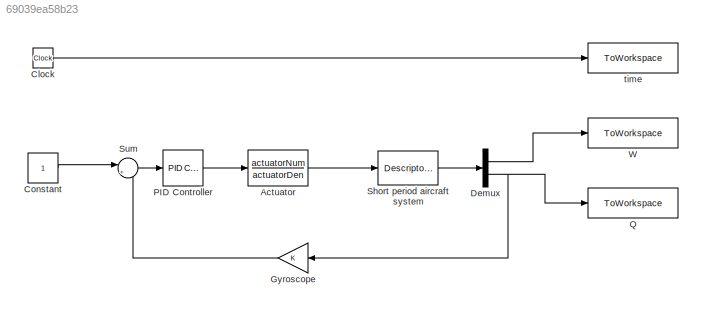
MODEL slx_69039ea58b23
KIND model
CONFIG AbsTol = auto
CONFIG EnableMultiTasking = off
CONFIG FixedStep = auto
CONFIG MaxStep = auto
CONFIG MinStep = auto
CONFIG RelTol = 1e-3
CONFIG SampleTimeConstraint = Unconstrained
CONFIG SolverName = VariableStepAuto
CONFIG StartTime = 0.0
CONFIG StopTime = 10.0
BLOCK [TransferFcn] Actuator
  Denominator = actuatorDen
  Numerator = actuatorNum
BLOCK [Clock] Clock
BLOCK [Constant] Constant
BLOCK [Demux] Demux
  Outputs = 2
  Ports = [1, 2]
BLOCK [Gain] Gyroscope
BLOCK [Reference] PID Controller  REF=slpidlib/PID Controller
  Ports = [1, 1]
  SourceBlock = slpidlib/PID Controller
  SourceProductBaseCode = SL
  SourceType = PID 1dof
BLOCK [ToWorkspace] Q
  FixptAsFi = on
  MaxDataPoints = inf
  Ports = [1]
  SampleTime = -1
  SaveFormat = Timeseries
  VariableName = Q
BLOCK [DescriptorStateSpace] Short period aircraft system
  A = AShortPeriod
  B = BShortPeriod
  C = CShortPeriod
  D = DShortPeriod
  E = EShordPeriod
  InitialCondition = [0,0]
  Ports = [1, 1]
BLOCK [Sum] Sum
  Inputs = |+-
  Ports = [2, 1]
BLOCK [ToWorkspace] W
  FixptAsFi = on
  MaxDataPoints = inf
  Ports = [1]
  SampleTime = -1
  SaveFormat = Timeseries
  VariableName = W
BLOCK [ToWorkspace] time
  FixptAsFi = on
  MaxDataPoints = inf
  Ports = [1]
  SampleTime = -1
  SaveFormat = Timeseries
  VariableName = time
LINE Actuator:1 -> Short period aircraft system:1
LINE Clock:1 -> time:1
LINE Constant:1 -> Sum:1
LINE Demux:1 -> W:1
NET Demux:2 -> Gyroscope:1, Q:1
LINE Gyroscope:1 -> Sum:2
LINE PID Controller:1 -> Actuator:1
LINE Short period aircraft system:1 -> Demux:1
LINE Sum:1 -> PID Controller:1
note: NET lines group one-source signal fan-out (src -> all destinations, sorted); 1:1 wires keep LINE
